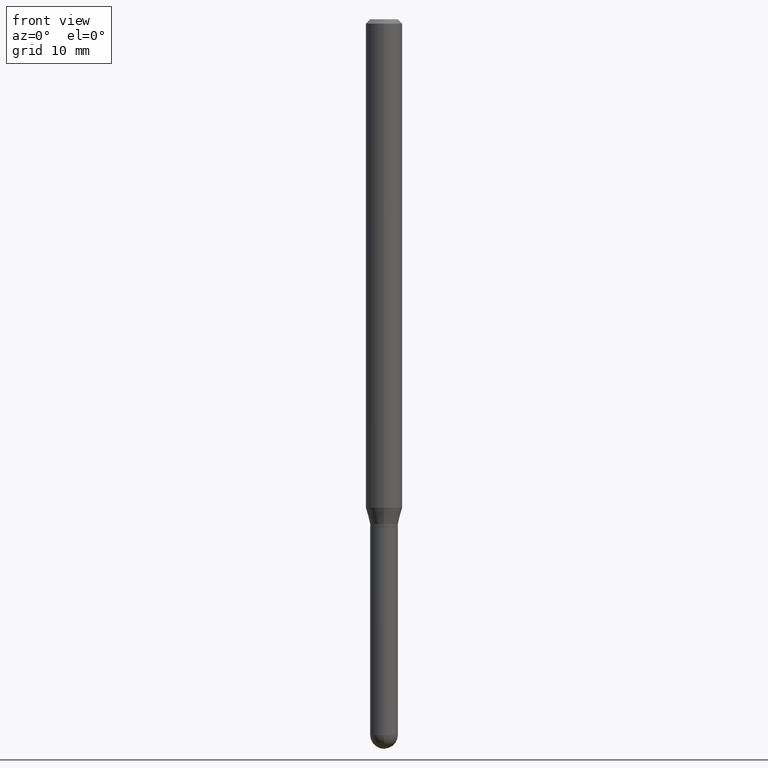
[diagram: clean part render]
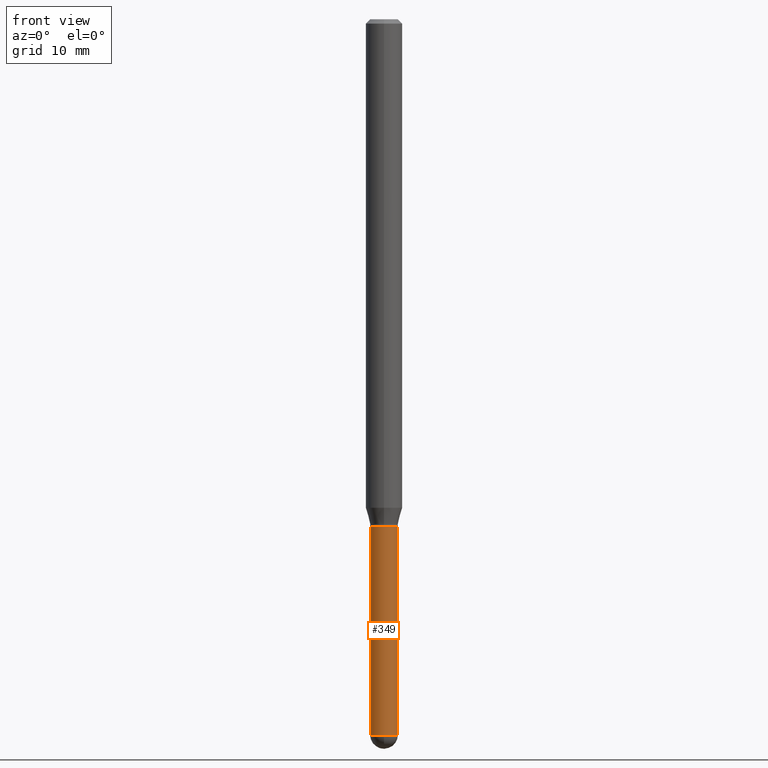
[diagram: same view with one face highlighted and labeled with its STEP entity id]
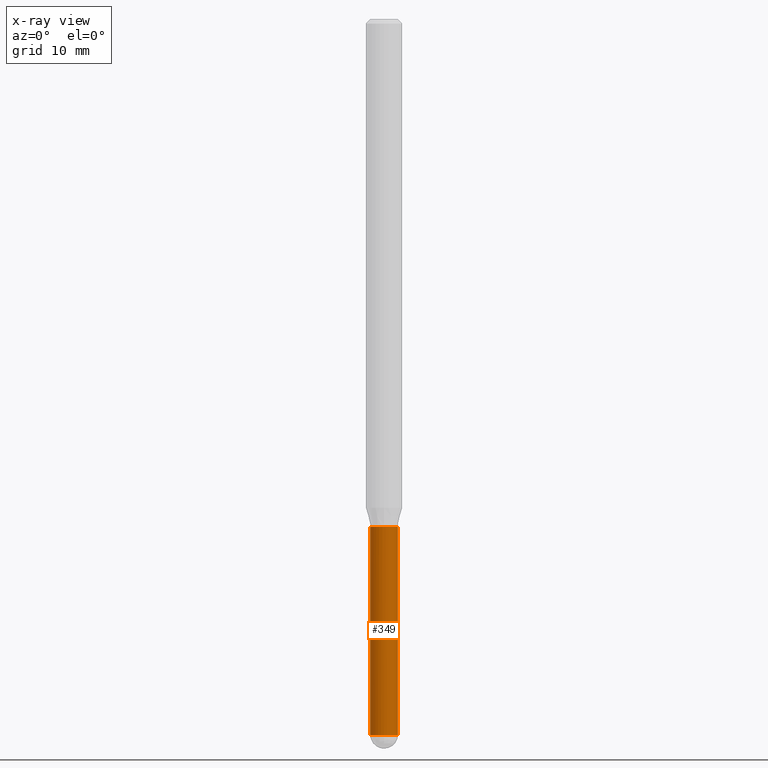
[diagram: x-ray of the same camera — body ghosted, the highlighted face saturated]
A machine part, front view. The second image highlights one B-rep face of the part: STEP entity #349.
The next image is the same camera in x-ray: the body ghosted, the highlighted face saturated — about 0% of this face is hidden behind the body in this view.
In plain terms, the highlighted cylindrical surface (edge-blend (fillet) strip) has radius 1.2065 mm, axis along (-0, 0, 1).
Its self-contained STEP definition (entity closure, byte-faithful):
#21 = CARTESIAN_POINT ( 'NONE',  ( -3.375077994859875895E-16, -0.04750000000000855621, -2.452499999999999680 ) ) ;
#23 = CARTESIAN_POINT ( 'NONE',  ( -0.04750000000000000749, 3.375077994860476415E-16, -2.336494167871080260E-30 ) ) ;
#25 = DIRECTION ( 'NONE',  ( -2.445468806185136877E-29, 3.491481338843145188E-15, 1.000000000000000000 ) ) ;
#39 = VERTEX_POINT ( 'NONE', #369 ) ;
#48 = DIRECTION ( 'NONE',  ( -2.445468806185136597E-29, 3.491481338843145583E-15, 1.000000000000000000 ) ) ;
#50 = VERTEX_POINT ( 'NONE', #21 ) ;
#57 = CARTESIAN_POINT ( 'NONE',  ( 4.255115722762138620E-29, -6.075177529587074600E-15, -1.740000000000000213 ) ) ;
#58 = VERTEX_POINT ( 'NONE', #138 ) ;
#65 = DIRECTION ( 'NONE',  ( 1.000000000000000000, -6.982962677686266711E-15, 4.876176775795934672E-29 ) ) ;
#83 = DIRECTION ( 'NONE',  ( 1.000000000000000000, -6.982962677686280910E-15, 0.000000000000000000 ) ) ;
#94 = CIRCLE ( 'NONE', #364, 0.04750000000000000749 ) ;
#103 = AXIS2_PLACEMENT_3D ( 'NONE', #271, #426, #462 ) ;
#104 = DIRECTION ( 'NONE',  ( -2.445468806185136597E-29, 3.491481338843145583E-15, 1.000000000000000000 ) ) ;
#106 = LINE ( 'NONE', #23, #171 ) ;
#113 = CARTESIAN_POINT ( 'NONE',  ( 0.04750000000000000749, -3.316907271900977082E-16, 2.316183968503069432E-30 ) ) ;
#123 = ORIENTED_EDGE ( 'NONE', *, *, #137, .T. ) ;
#129 = EDGE_CURVE ( 'NONE', #58, #440, #227, .T. ) ;
#130 = DIRECTION ( 'NONE',  ( 1.000000000000000000, -6.982962677686261977E-15, 0.000000000000000000 ) ) ;
#137 = EDGE_CURVE ( 'NONE', #39, #50, #94, .T. ) ;
#138 = CARTESIAN_POINT ( 'NONE',  ( -0.04749999999999999362, -6.981509957063897703E-15, -1.740000000000000213 ) ) ;
#171 = VECTOR ( 'NONE', #25, 39.37007874015748143 ) ;
#180 = AXIS2_PLACEMENT_3D ( 'NONE', #182, #104, #65 ) ;
#182 = CARTESIAN_POINT ( 'NONE',  ( 0.000000000000000000, 0.000000000000000000, 0.000000000000000000 ) ) ;
#188 = FACE_OUTER_BOUND ( 'NONE', #203, .T. ) ;
#203 = EDGE_LOOP ( 'NONE', ( #449, #123, #392, #485, #243 ) ) ;
#227 = CIRCLE ( 'NONE', #425, 0.04749999999999999362 ) ;
#243 = ORIENTED_EDGE ( 'NONE', *, *, #129, .F. ) ;
#254 = CARTESIAN_POINT ( 'NONE',  ( 5.997512247169047773E-29, -8.562857983512815004E-15, -2.452500000000000124 ) ) ;
#271 = CARTESIAN_POINT ( 'NONE',  ( 5.997512247169047773E-29, -8.562857983512815004E-15, -2.452500000000000124 ) ) ;
#273 = DIRECTION ( 'NONE',  ( -2.445468806185136877E-29, 3.491481338843145188E-15, 1.000000000000000000 ) ) ;
#278 = CARTESIAN_POINT ( 'NONE',  ( 0.04749999999999999362, -6.406868256777172111E-15, -1.740000000000000213 ) ) ;
#297 = CIRCLE ( 'NONE', #103, 0.04750000000000000749 ) ;
#312 = EDGE_CURVE ( 'NONE', #50, #395, #297, .T. ) ;
#328 = EDGE_CURVE ( 'NONE', #39, #58, #106, .T. ) ;
#349 = ADVANCED_FACE ( 'NONE', ( #188 ), #509, .T. ) ;
#354 = VECTOR ( 'NONE', #273, 39.37007874015748143 ) ;
#364 = AXIS2_PLACEMENT_3D ( 'NONE', #254, #490, #83 ) ;
#369 = CARTESIAN_POINT ( 'NONE',  ( -0.04750000000000000749, -6.981509957063897703E-15, -2.452500000000000124 ) ) ;
#392 = ORIENTED_EDGE ( 'NONE', *, *, #312, .T. ) ;
#394 = LINE ( 'NONE', #113, #354 ) ;
#395 = VERTEX_POINT ( 'NONE', #511 ) ;
#421 = EDGE_CURVE ( 'NONE', #395, #440, #394, .T. ) ;
#425 = AXIS2_PLACEMENT_3D ( 'NONE', #57, #48, #130 ) ;
#426 = DIRECTION ( 'NONE',  ( -2.445468806185136597E-29, 3.491481338843145583E-15, 1.000000000000000000 ) ) ;
#440 = VERTEX_POINT ( 'NONE', #278 ) ;
#449 = ORIENTED_EDGE ( 'NONE', *, *, #328, .F. ) ;
#462 = DIRECTION ( 'NONE',  ( 1.000000000000000000, -6.982962677686280910E-15, 0.000000000000000000 ) ) ;
#485 = ORIENTED_EDGE ( 'NONE', *, *, #421, .T. ) ;
#490 = DIRECTION ( 'NONE',  ( -2.445468806185136597E-29, 3.491481338843145583E-15, 1.000000000000000000 ) ) ;
#509 = CYLINDRICAL_SURFACE ( 'NONE', #180, 0.04750000000000000749 ) ;
#511 = CARTESIAN_POINT ( 'NONE',  ( 0.04750000000000000749, -7.650708483740042707E-15, -2.452500000000000124 ) ) ;